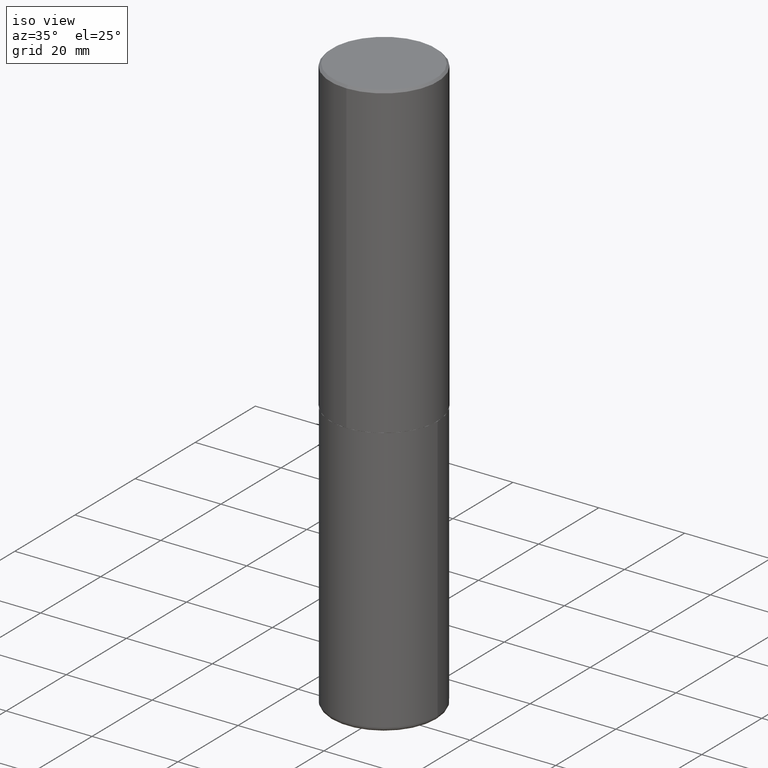
[diagram: clean part render]
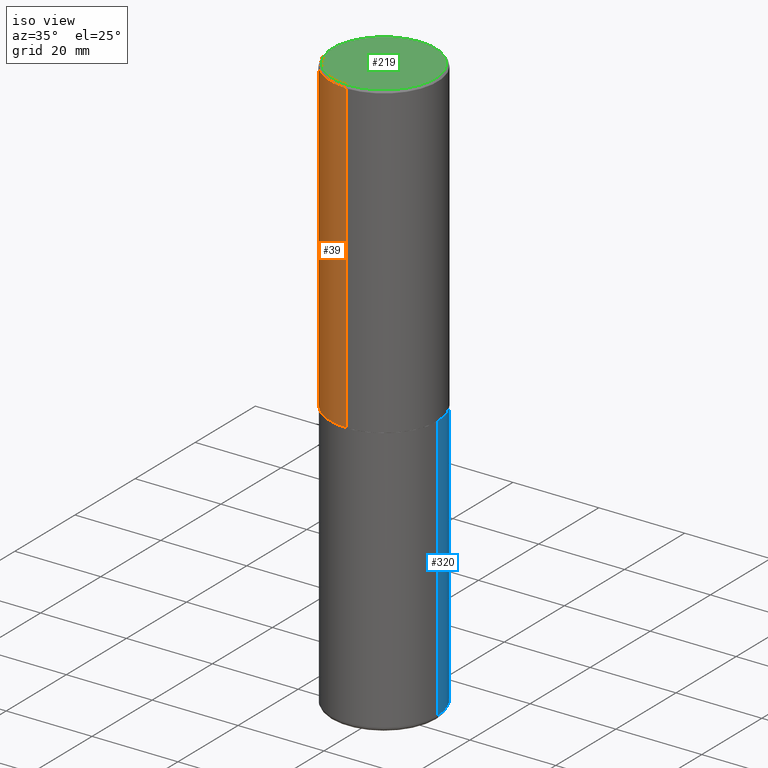
[diagram: same view with three faces highlighted in distinct colors, each labeled with its STEP entity id]
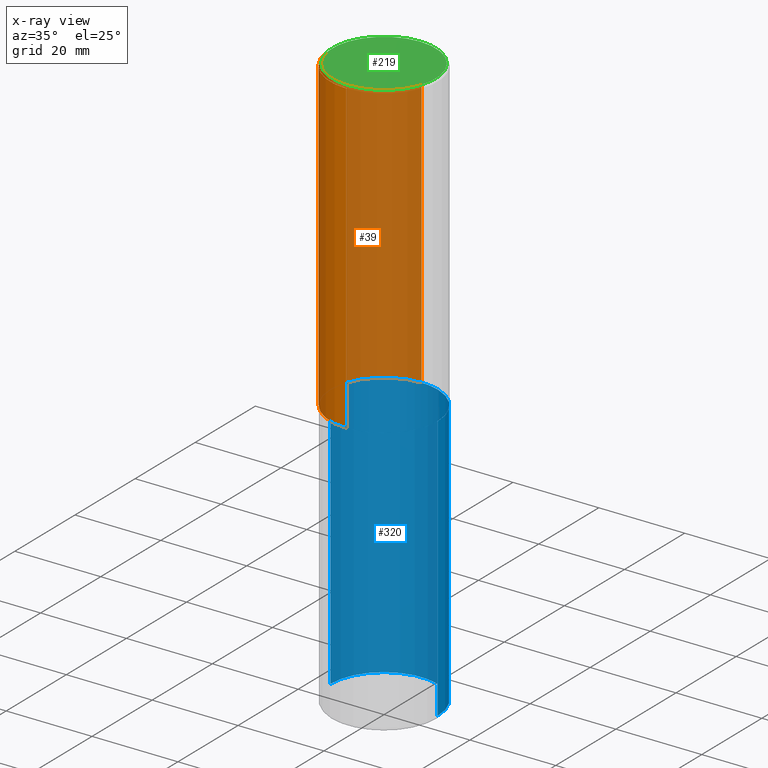
[diagram: x-ray of the same camera — body ghosted, the three highlighted faces saturated]
A machine part, iso view with three faces highlighted in distinct colors.
The next image is the same camera in x-ray (body ghosted, the three faces saturated) — at least one of them is partly hidden behind the body in this view.
Their STEP definitions:

[orange] entity #39 — the highlighted cylindrical surface (partial cylindrical patch) has radius 12.5006 mm, axis along (-0, 0, 1).
#2 = CARTESIAN_POINT ( 'NONE',  ( -3.376394089603258656E-15, -0.4921500000000000874, -0.01999999999999838712 ) ) ;
#8 = VECTOR ( 'NONE', #300, 39.37007874015748143 ) ;
#11 = CARTESIAN_POINT ( 'NONE',  ( -3.436665081823228329E-15, -0.4921500000000101904, -2.833699999999998997 ) ) ;
#20 = ORIENTED_EDGE ( 'NONE', *, *, #337, .T. ) ;
#22 = LINE ( 'NONE', #170, #8 ) ;
#25 = CIRCLE ( 'NONE', #388, 0.4921500000000003094 ) ;
#32 = DIRECTION ( 'NONE',  ( -6.982962677686265922E-15, -1.000000000000000000, 3.330506545156063891E-15 ) ) ;
#37 = VERTEX_POINT ( 'NONE', #85 ) ;
#39 = ADVANCED_FACE ( 'NONE', ( #200 ), #266, .T. ) ;
#45 = DIRECTION ( 'NONE',  ( -2.445229172240879899E-29, 3.491824508290438613E-15, 1.000000000000000000 ) ) ;
#46 = CARTESIAN_POINT ( 'NONE',  ( -3.436665081823297354E-15, -0.4921500000000001984, 1.718501431755139742E-15 ) ) ;
#71 = DIRECTION ( 'NONE',  ( -6.982962677686265922E-15, -1.000000000000000000, 3.495297233588267070E-15 ) ) ;
#85 = CARTESIAN_POINT ( 'NONE',  ( 3.436665081823296565E-15, 0.4921499999999999764, -0.02000000000000182535 ) ) ;
#128 = DIRECTION ( 'NONE',  ( -6.982962677686266711E-15, -1.000000000000000000, 3.491824508290437824E-15 ) ) ;
#136 = CARTESIAN_POINT ( 'NONE',  ( 0.000000000000000000, 0.000000000000000000, 0.000000000000000000 ) ) ;
#150 = EDGE_CURVE ( 'NONE', #241, #226, #25, .T. ) ;
#159 = CARTESIAN_POINT ( 'NONE',  ( 6.929045905378983914E-29, -9.894783109142616722E-15, -2.833700000000000330 ) ) ;
#161 = VECTOR ( 'NONE', #45, 39.37007874015748143 ) ;
#167 = DIRECTION ( 'NONE',  ( -2.445229172240879899E-29, 3.491824508290438219E-15, 1.000000000000000000 ) ) ;
#170 = CARTESIAN_POINT ( 'NONE',  ( 3.496936074043333686E-15, 0.4921500000000001984, -1.718501431755139742E-15 ) ) ;
#199 = DIRECTION ( 'NONE',  ( -2.445229172240879899E-29, 3.491824508290438219E-15, 1.000000000000000000 ) ) ;
#200 = FACE_OUTER_BOUND ( 'NONE', #396, .T. ) ;
#226 = VERTEX_POINT ( 'NONE', #11 ) ;
#235 = VERTEX_POINT ( 'NONE', #2 ) ;
#241 = VERTEX_POINT ( 'NONE', #306 ) ;
#246 = EDGE_CURVE ( 'NONE', #37, #235, #285, .T. ) ;
#258 = DIRECTION ( 'NONE',  ( -2.445229172240879899E-29, 3.491824508290438219E-15, 1.000000000000000000 ) ) ;
#259 = AXIS2_PLACEMENT_3D ( 'NONE', #366, #199, #71 ) ;
#266 = CYLINDRICAL_SURFACE ( 'NONE', #349, 0.4921500000000001984 ) ;
#272 = ORIENTED_EDGE ( 'NONE', *, *, #150, .T. ) ;
#285 = CIRCLE ( 'NONE', #259, 0.4921500000000000319 ) ;
#300 = DIRECTION ( 'NONE',  ( -2.445229172240879899E-29, 3.491824508290438613E-15, 1.000000000000000000 ) ) ;
#306 = CARTESIAN_POINT ( 'NONE',  ( 3.496936074043369579E-15, 0.4921499999999904840, -2.833700000000002106 ) ) ;
#337 = EDGE_CURVE ( 'NONE', #226, #235, #338, .T. ) ;
#338 = LINE ( 'NONE', #46, #161 ) ;
#346 = ORIENTED_EDGE ( 'NONE', *, *, #398, .F. ) ;
#349 = AXIS2_PLACEMENT_3D ( 'NONE', #136, #167, #128 ) ;
#364 = ORIENTED_EDGE ( 'NONE', *, *, #246, .F. ) ;
#366 = CARTESIAN_POINT ( 'NONE',  ( 4.890458344481786073E-31, -6.983649016580912824E-17, -0.02000000000000010797 ) ) ;
#388 = AXIS2_PLACEMENT_3D ( 'NONE', #159, #258, #32 ) ;
#396 = EDGE_LOOP ( 'NONE', ( #346, #272, #20, #364 ) ) ;
#398 = EDGE_CURVE ( 'NONE', #241, #37, #22, .T. ) ;

[blue] entity #320 — the highlighted cylindrical surface (partial cylindrical patch) has radius 12.5006 mm, axis along (-0, 0, 1).
#4 = DIRECTION ( 'NONE',  ( -2.445468806185136877E-29, 3.491481338843145188E-15, 1.000000000000000000 ) ) ;
#14 = VERTEX_POINT ( 'NONE', #50 ) ;
#19 = AXIS2_PLACEMENT_3D ( 'NONE', #354, #125, #321 ) ;
#30 = DIRECTION ( 'NONE',  ( 1.000000000000000000, -6.982962677686266711E-15, 0.000000000000000000 ) ) ;
#40 = CIRCLE ( 'NONE', #19, 0.4921499999999999764 ) ;
#50 = CARTESIAN_POINT ( 'NONE',  ( -0.4921499999999999764, -1.066154447716645114E-14, -2.834700000000000220 ) ) ;
#57 = EDGE_CURVE ( 'NONE', #400, #14, #315, .T. ) ;
#60 = CARTESIAN_POINT ( 'NONE',  ( 1.290131523391030870E-28, -1.841965895120090052E-14, -5.275600000000000733 ) ) ;
#77 = AXIS2_PLACEMENT_3D ( 'NONE', #302, #109, #344 ) ;
#107 = ORIENTED_EDGE ( 'NONE', *, *, #197, .F. ) ;
#109 = DIRECTION ( 'NONE',  ( -2.445468806185136597E-29, 3.491481338843145583E-15, 1.000000000000000000 ) ) ;
#118 = EDGE_CURVE ( 'NONE', #132, #400, #260, .T. ) ;
#125 = DIRECTION ( 'NONE',  ( -2.445468806185136597E-29, 3.491481338843145583E-15, 1.000000000000000000 ) ) ;
#126 = ORIENTED_EDGE ( 'NONE', *, *, #118, .T. ) ;
#131 = CARTESIAN_POINT ( 'NONE',  ( -0.4921500000000000874, -1.492272287715756368E-14, -5.275600000000000733 ) ) ;
#132 = VERTEX_POINT ( 'NONE', #358 ) ;
#137 = EDGE_CURVE ( 'NONE', #132, #245, #360, .T. ) ;
#153 = VECTOR ( 'NONE', #378, 39.37007874015748143 ) ;
#197 = EDGE_CURVE ( 'NONE', #245, #14, #40, .T. ) ;
#208 = CYLINDRICAL_SURFACE ( 'NONE', #77, 0.4921499999999999764 ) ;
#215 = VECTOR ( 'NONE', #4, 39.37007874015748143 ) ;
#238 = CARTESIAN_POINT ( 'NONE',  ( 0.4921499999999999764, -1.333396723304196175E-14, -2.834700000000000220 ) ) ;
#242 = AXIS2_PLACEMENT_3D ( 'NONE', #60, #385, #30 ) ;
#244 = FACE_OUTER_BOUND ( 'NONE', #297, .T. ) ;
#245 = VERTEX_POINT ( 'NONE', #238 ) ;
#260 = CIRCLE ( 'NONE', #242, 0.4921499999999999209 ) ;
#264 = ORIENTED_EDGE ( 'NONE', *, *, #137, .F. ) ;
#294 = CARTESIAN_POINT ( 'NONE',  ( 0.4921499999999999764, -3.436665081823295777E-15, 2.399810400207969603E-29 ) ) ;
#297 = EDGE_LOOP ( 'NONE', ( #126, #325, #107, #264 ) ) ;
#302 = CARTESIAN_POINT ( 'NONE',  ( 0.000000000000000000, 0.000000000000000000, 0.000000000000000000 ) ) ;
#312 = CARTESIAN_POINT ( 'NONE',  ( -0.4921499999999999764, 3.496936074043332897E-15, -2.420853904668951509E-29 ) ) ;
#315 = LINE ( 'NONE', #312, #153 ) ;
#320 = ADVANCED_FACE ( 'NONE', ( #244 ), #208, .T. ) ;
#321 = DIRECTION ( 'NONE',  ( 1.000000000000000000, -6.982962677686265922E-15, 0.000000000000000000 ) ) ;
#325 = ORIENTED_EDGE ( 'NONE', *, *, #57, .T. ) ;
#344 = DIRECTION ( 'NONE',  ( 1.000000000000000000, -6.982962677686265922E-15, 4.876176775795935793E-29 ) ) ;
#354 = CARTESIAN_POINT ( 'NONE',  ( 6.932170424893007423E-29, -9.897302151218665974E-15, -2.834700000000000220 ) ) ;
#358 = CARTESIAN_POINT ( 'NONE',  ( 0.4921500000000000874, -2.185632403302419787E-14, -5.275600000000000733 ) ) ;
#360 = LINE ( 'NONE', #294, #215 ) ;
#378 = DIRECTION ( 'NONE',  ( -2.445468806185136877E-29, 3.491481338843145188E-15, 1.000000000000000000 ) ) ;
#385 = DIRECTION ( 'NONE',  ( -2.445468806185136597E-29, 3.491481338843145583E-15, 1.000000000000000000 ) ) ;
#400 = VERTEX_POINT ( 'NONE', #131 ) ;

[green] entity #219 — the highlighted planar face has unit normal (0, -0, -1).
#33 = AXIS2_PLACEMENT_3D ( 'NONE', #229, #35, #218 ) ;
#35 = DIRECTION ( 'NONE',  ( 2.445229172240879339E-29, -3.491824508290438613E-15, -1.000000000000000000 ) ) ;
#61 = EDGE_CURVE ( 'NONE', #368, #149, #341, .T. ) ;
#75 = EDGE_LOOP ( 'NONE', ( #408, #183 ) ) ;
#124 = AXIS2_PLACEMENT_3D ( 'NONE', #347, #133, #311 ) ;
#133 = DIRECTION ( 'NONE',  ( -2.445229172240879899E-29, 3.491824508290438219E-15, 1.000000000000000000 ) ) ;
#143 = CARTESIAN_POINT ( 'NONE',  ( -6.892706176078369160E-45, 9.842889422106222579E-31, 2.818838518011663701E-16 ) ) ;
#148 = CIRCLE ( 'NONE', #124, 0.4721499999999997921 ) ;
#149 = VERTEX_POINT ( 'NONE', #154 ) ;
#154 = CARTESIAN_POINT ( 'NONE',  ( -3.307789109625542536E-15, -0.4721499999999997921, 1.930548793390495776E-15 ) ) ;
#163 = AXIS2_PLACEMENT_3D ( 'NONE', #143, #164, #389 ) ;
#164 = DIRECTION ( 'NONE',  ( -2.445229172240879899E-29, 3.491824508290438219E-15, 1.000000000000000000 ) ) ;
#177 = CARTESIAN_POINT ( 'NONE',  ( 3.366835455046432873E-15, 0.4721499999999997921, -1.366781089788163134E-15 ) ) ;
#183 = ORIENTED_EDGE ( 'NONE', *, *, #380, .T. ) ;
#218 = DIRECTION ( 'NONE',  ( 6.982962677686265922E-15, 1.000000000000000000, -3.491824508290438613E-15 ) ) ;
#219 = ADVANCED_FACE ( 'NONE', ( #394 ), #324, .F. ) ;
#229 = CARTESIAN_POINT ( 'NONE',  ( 3.297005828269569180E-15, 0.4721499999999997921, -1.507723015688746393E-15 ) ) ;
#311 = DIRECTION ( 'NONE',  ( -6.982962677686265922E-15, -1.000000000000000000, 3.491824508290437824E-15 ) ) ;
#324 = PLANE ( 'NONE',  #33 ) ;
#341 = CIRCLE ( 'NONE', #163, 0.4721499999999997921 ) ;
#347 = CARTESIAN_POINT ( 'NONE',  ( -6.892706176078369160E-45, 9.842889422106222579E-31, 2.818838518011663701E-16 ) ) ;
#368 = VERTEX_POINT ( 'NONE', #177 ) ;
#380 = EDGE_CURVE ( 'NONE', #149, #368, #148, .T. ) ;
#389 = DIRECTION ( 'NONE',  ( -6.982962677686265922E-15, -1.000000000000000000, 3.491824508290437824E-15 ) ) ;
#394 = FACE_OUTER_BOUND ( 'NONE', #75, .T. ) ;
#408 = ORIENTED_EDGE ( 'NONE', *, *, #61, .T. ) ;